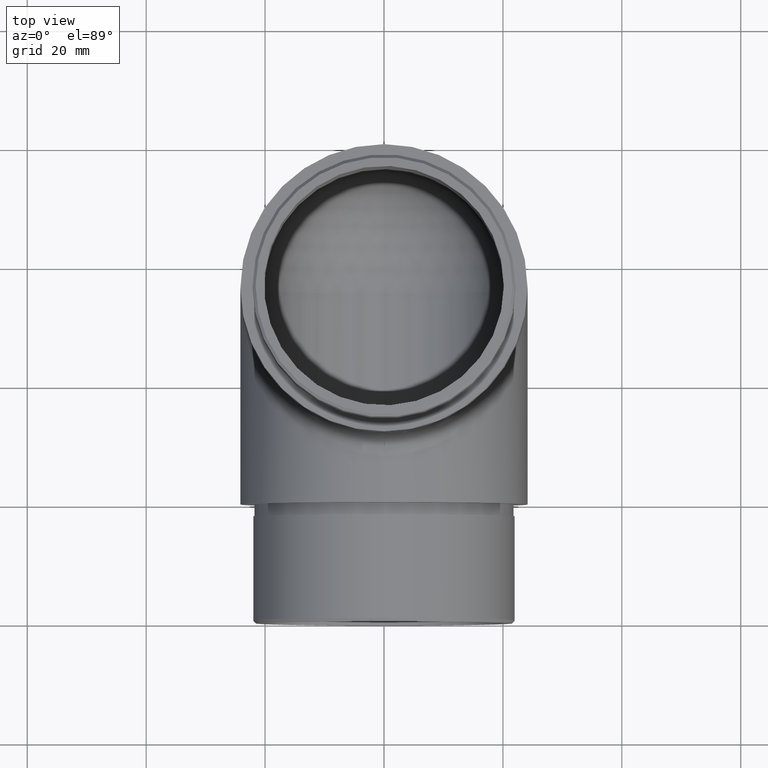
[diagram: clean part render]
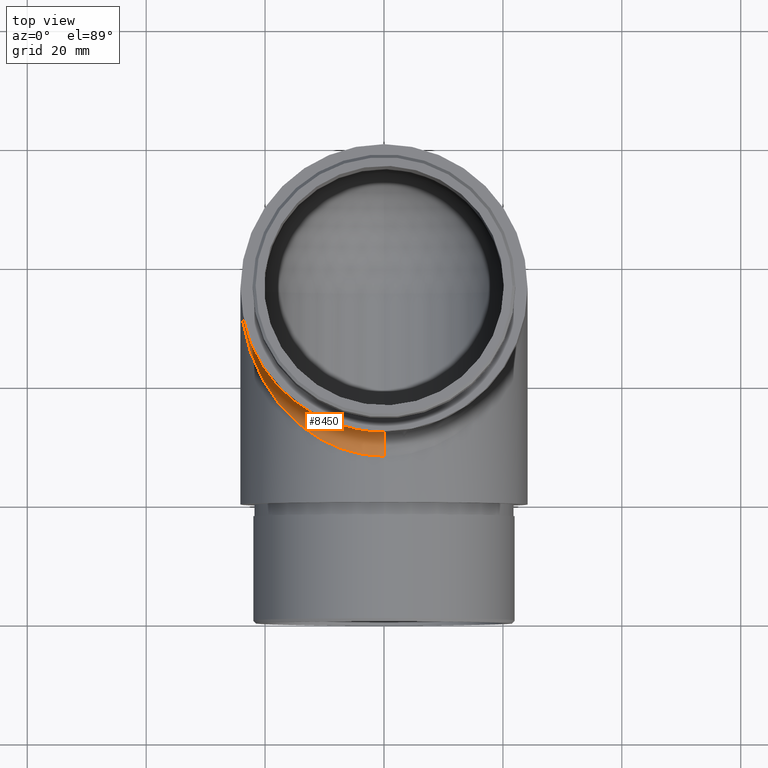
[diagram: same view with one face highlighted and labeled with its STEP entity id]
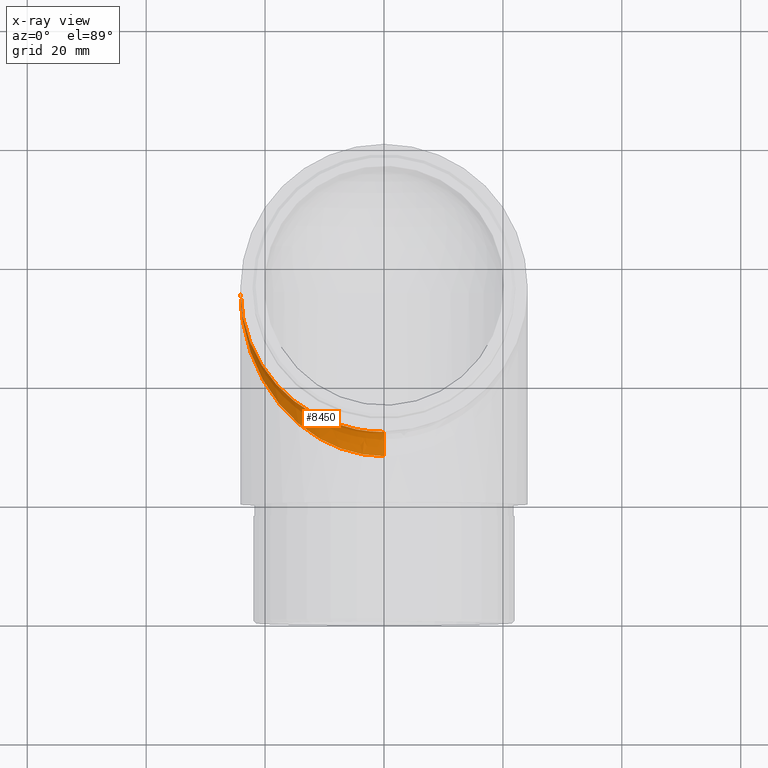
[diagram: x-ray of the same camera — body ghosted, the highlighted face saturated]
A machine part, top view. The second image highlights one B-rep face of the part: STEP entity #8450.
The next image is the same camera in x-ray: the body ghosted, the highlighted face saturated — about 0% of this face is hidden behind the body in this view.
In plain terms, the highlighted face is a freeform B-spline surface patch.
Its self-contained STEP definition (entity closure, byte-faithful):
#76 = CIRCLE ( 'NONE', #3490, 4.000000000000000000 ) ;
#164 =( BOUNDED_SURFACE ( )  B_SPLINE_SURFACE ( 3, 2, ( 
 ( #7618, #2650, #9637 ),
 ( #8598, #6676, #9596 ),
 ( #2735, #7659, #8687 ),
 ( #1739, #9512, #3755 ),
 ( #2782, #8647, #6719 ),
 ( #724, #10556, #7750 ),
 ( #4587, #11580, #679 ),
 ( #5706, #12533, #3716 ),
 ( #1700, #3604, #2690 ),
 ( #11657, #11493, #10679 ),
 ( #11538, #6629, #10634 ),
 ( #11623, #640, #4716 ),
 ( #12614, #8562, #2608 ),
 ( #3678, #771, #5584 ),
 ( #10590, #1785, #5621 ),
 ( #5751, #12657, #4674 ),
 ( #12489, #6765, #811 ),
 ( #7580, #1655, #2002 ) ),
 .UNSPECIFIED., .F., .F., .F. ) 
 B_SPLINE_SURFACE_WITH_KNOTS ( ( 4, 2, 2, 2, 2, 2, 2, 2, 4 ),
 ( 3, 3 ),
 ( 6.283185307179586232, 6.479534848028948524, 6.675884388878310816, 6.872233929727672219, 7.068583470577034511, 7.264933011426396803, 7.461282552275758206, 7.657632093125120498, 7.853981633974482790 ),
 ( 0.000000000000000000, 1.000000000000000000 ),
 .UNSPECIFIED. ) 
 GEOMETRIC_REPRESENTATION_ITEM ( )  RATIONAL_B_SPLINE_SURFACE ( (
 ( 1.000000000000000000, 0.7071067811865469066, 1.000000000000000000),
 ( 1.000000000000000000, 0.7070717283965342048, 1.000000000000000000),
 ( 1.000000000000000000, 0.7117460025036116411, 1.000000000000000000),
 ( 1.000000000000000000, 0.7291288940397037122, 1.000000000000000000),
 ( 1.000000000000000000, 0.7418334178507554055, 1.000000000000000000),
 ( 1.000000000000000000, 0.7723968218464482005, 1.000000000000000000),
 ( 1.000000000000000000, 0.7902180086230246037, 1.000000000000000000),
 ( 1.000000000000000000, 0.8275942696203171245, 1.000000000000000000),
 ( 1.000000000000000000, 0.8471316604170165965, 1.000000000000000000),
 ( 1.000000000000000000, 0.8849191471518590424, 1.000000000000000000),
 ( 1.000000000000000000, 0.9031650994024450485, 1.000000000000000000),
 ( 1.000000000000000000, 0.9360421842839501405, 1.000000000000000000),
 ( 1.000000000000000000, 0.9506740353910904107, 1.000000000000000000),
 ( 1.000000000000000000, 0.9747108043712219283, 1.000000000000000000),
 ( 1.000000000000000000, 0.9841171504837531447, 1.000000000000000000),
 ( 1.000000000000000000, 0.9967613244639872416, 1.000000000000000000),
 ( 1.000000000000000000, 1.000009746408267119, 1.000000000000000000),
 ( 1.000000000000000000, 1.000000000000000000, 1.000000000000000000) ) ) 
 REPRESENTATION_ITEM ( '' )  SURFACE ( )  );
#522 = VERTEX_POINT ( 'NONE', #12557 ) ;
#640 = CARTESIAN_POINT ( 'NONE',  ( -20.44781897945508931, 22.85703085390720446, 37.14296914609686695 ) ) ;
#679 = CARTESIAN_POINT ( 'NONE',  ( -12.10278878095977007, 14.89186688372398848, 48.57945951233947568 ) ) ;
#724 = CARTESIAN_POINT ( 'NONE',  ( -10.70210163351830701, 10.54785216368583711, 45.85681599456277269 ) ) ;
#771 = CARTESIAN_POINT ( 'NONE',  ( -22.70764488886259969, 27.43523153822344796, 32.56476846176366280 ) ) ;
#811 = CARTESIAN_POINT ( 'NONE',  ( -24.15000000000000213, 34.26936826613817288, 25.99243409146645689 ) ) ;
#1589 = CARTESIAN_POINT ( 'NONE',  ( -24.15000000000000213, 19.36011178080263306, 38.29674246868975018 ) ) ;
#1655 = CARTESIAN_POINT ( 'NONE',  ( -24.14999999999999858, 35.85000000000005116, 24.14999999999994884 ) ) ;
#1700 = CARTESIAN_POINT ( 'NONE',  ( -15.95896602668215181, 14.64216124822929643, 42.34429150462808167 ) ) ;
#1739 = CARTESIAN_POINT ( 'NONE',  ( -6.261674029180410272, 8.600331339419581056, 47.52760206582689761 ) ) ;
#1785 = CARTESIAN_POINT ( 'NONE',  ( -23.24912884867291041, 29.07416331028083434, 30.92583668971014177 ) ) ;
#1999 = ORIENTED_EDGE ( 'NONE', *, *, #3168, .F. ) ;
#2002 = CARTESIAN_POINT ( 'NONE',  ( -24.14999999999999858, 35.85000000000005116, 24.14999999999994529 ) ) ;
#2329 = CARTESIAN_POINT ( 'NONE',  ( 4.618746149288144013E-15, 7.700000000000005507, 52.29999999999999716 ) ) ;
#2372 = CARTESIAN_POINT ( 'NONE',  ( -24.14999999999999858, 35.85000000000000853, 24.14999999999999503 ) ) ;
#2608 = CARTESIAN_POINT ( 'NONE',  ( -21.70681599452112920, 25.14789836638117748, 36.62470645907037436 ) ) ;
#2650 = CARTESIAN_POINT ( 'NONE',  ( 3.469446951953614189E-15, 11.70000000000000639, 48.29999999999999005 ) ) ;
#2690 = CARTESIAN_POINT ( 'NONE',  ( -15.95896602668215536, 17.65570849537191478, 45.35783875176678492 ) ) ;
#2735 = CARTESIAN_POINT ( 'NONE',  ( -3.161188524198547789, 7.881457373878538952, 48.14432697764915048 ) ) ;
#2782 = CARTESIAN_POINT ( 'NONE',  ( -7.781508149715453904, 9.137730155928680986, 47.06656542573239932 ) ) ;
#3168 = EDGE_CURVE ( 'NONE', #522, #9118, #10424, .T. ) ;
#3490 = AXIS2_PLACEMENT_3D ( 'NONE', #2329, #11213, #11177 ) ;
#3604 = CARTESIAN_POINT ( 'NONE',  ( -14.88609126051991893, 16.70899965753996241, 43.29100034245604434 ) ) ;
#3678 = CARTESIAN_POINT ( 'NONE',  ( -22.91656542577706190, 26.77962921690706111, 31.93150814960763029 ) ) ;
#3716 = CARTESIAN_POINT ( 'NONE',  ( -14.73125347388700490, 16.64815084206307461, 46.53227966029381690 ) ) ;
#3755 = CARTESIAN_POINT ( 'NONE',  ( -6.261674029181192758, 12.47239793417326403, 51.39966866057716288 ) ) ;
#4336 = CARTESIAN_POINT ( 'NONE',  ( 3.469446951953614189E-15, 11.70000000000000284, 52.29999999999999716 ) ) ;
#4342 = CARTESIAN_POINT ( 'NONE',  ( -14.14674246868975160, 11.70000000000000284, 52.29999999999999716 ) ) ;
#4367 = CARTESIAN_POINT ( 'NONE',  ( -24.14999999999999858, 35.85000000000000853, 24.14999999999999503 ) ) ;
#4389 = CARTESIAN_POINT ( 'NONE',  ( 3.469446951953614189E-15, 7.699999999999998401, 48.29999999999999716 ) ) ;
#4587 = CARTESIAN_POINT ( 'NONE',  ( -12.10278878095977007, 11.42054048765320928, 45.10813311627600797 ) ) ;
#4674 = CARTESIAN_POINT ( 'NONE',  ( -23.99432697767941747, 32.68881147595361369, 27.83478082616916183 ) ) ;
#4716 = CARTESIAN_POINT ( 'NONE',  ( -20.95813311630674747, 23.74721121908622123, 38.25739147753871094 ) ) ;
#5118 = CARTESIAN_POINT ( 'NONE',  ( 3.469446951953614189E-15, 11.70000000000000284, 52.29999999999999716 ) ) ;
#5584 = CARTESIAN_POINT ( 'NONE',  ( -22.91656542577398525, 28.06849185038494454, 33.22037078308424185 ) ) ;
#5621 = CARTESIAN_POINT ( 'NONE',  ( -23.37760206579660505, 29.58832597066734493, 31.44880430333892107 ) ) ;
#5706 = CARTESIAN_POINT ( 'NONE',  ( -14.73125347388700490, 13.46772033971349458, 43.35184915793692539 ) ) ;
#5751 = CARTESIAN_POINT ( 'NONE',  ( -23.99432697767941391, 32.16521917383084173, 27.31118852404638631 ) ) ;
#6629 = CARTESIAN_POINT ( 'NONE',  ( -18.46277926140382775, 20.14369427253318179, 39.85630572746259048 ) ) ;
#6676 = CARTESIAN_POINT ( 'NONE',  ( -1.317942443150481591, 11.69999999998722906, 48.29999999999360227 ) ) ;
#6719 = CARTESIAN_POINT ( 'NONE',  ( -7.781508149715455680, 12.93343457426759535, 50.86226984406789597 ) ) ;
#6730 = VERTEX_POINT ( 'NONE', #4336 ) ;
#6765 = CARTESIAN_POINT ( 'NONE',  ( -24.14999999999095692, 34.13848327318645204, 25.86151672686779079 ) ) ;
#7580 = CARTESIAN_POINT ( 'NONE',  ( -24.14999999999999858, 35.85000000000005826, 24.14999999999995239 ) ) ;
#7618 = CARTESIAN_POINT ( 'NONE',  ( 3.469446951953614189E-15, 7.699999999999998401, 48.29999999999999716 ) ) ;
#7659 = CARTESIAN_POINT ( 'NONE',  ( -2.623246104859317196, 11.79847233939080020, 48.20152766060096639 ) ) ;
#7750 = CARTESIAN_POINT ( 'NONE',  ( -10.70210163351830879, 14.14318400543722021, 49.45214783631757882 ) ) ;
#8154 = FACE_OUTER_BOUND ( 'NONE', #11963, .T. ) ;
#8450 = ADVANCED_FACE ( 'NONE', ( #8154 ), #164, .F. ) ;
#8562 = CARTESIAN_POINT ( 'NONE',  ( -21.31438768496386515, 24.33263276805284647, 35.66736723196037673 ) ) ;
#8598 = CARTESIAN_POINT ( 'NONE',  ( -1.580631733763065094, 7.700000000003194955, 48.29999999999999716 ) ) ;
#8647 = CARTESIAN_POINT ( 'NONE',  ( -6.685530797801338743, 12.56865462050189208, 47.43134537949810436 ) ) ;
#8687 = CARTESIAN_POINT ( 'NONE',  ( -3.161188524197764860, 11.85567302235070031, 52.11854262612472155 ) ) ;
#8696 = EDGE_CURVE ( 'NONE', #522, #6730, #76, .T. ) ;
#8772 = EDGE_CURVE ( 'NONE', #9118, #6730, #11280, .T. ) ;
#9118 = VERTEX_POINT ( 'NONE', #4367 ) ;
#9274 = CARTESIAN_POINT ( 'NONE',  ( -24.15000000000000213, 21.70325753131025692, 40.63988821919736694 ) ) ;
#9512 = CARTESIAN_POINT ( 'NONE',  ( -5.320797334010766377, 12.23663053424899338, 47.76336946575906950 ) ) ;
#9596 = CARTESIAN_POINT ( 'NONE',  ( -1.580631733763650182, 11.69999999999999929, 52.29999999998721449 ) ) ;
#9637 = CARTESIAN_POINT ( 'NONE',  ( 3.469446951953614189E-15, 11.69999999999999929, 52.29999999999999716 ) ) ;
#10284 = ORIENTED_EDGE ( 'NONE', *, *, #8772, .F. ) ;
#10424 =( BOUNDED_CURVE ( )  B_SPLINE_CURVE ( 3, ( #4389, #11305, #1589, #12376 ),
 .UNSPECIFIED., .F., .F. ) 
 B_SPLINE_CURVE_WITH_KNOTS ( ( 4, 4 ),
 ( 0.000000000000000000, 1.570796326794896780 ),
 .UNSPECIFIED. ) 
 CURVE ( )  GEOMETRIC_REPRESENTATION_ITEM ( )  RATIONAL_B_SPLINE_CURVE ( ( 1.000000000000000000, 0.8047378541243649375, 0.8047378541243649375, 1.000000000000000000 ) ) 
 REPRESENTATION_ITEM ( '' )  );
#10556 = CARTESIAN_POINT ( 'NONE',  ( -9.462697992456712726, 13.54414663757125581, 46.45585336242872643 ) ) ;
#10590 = CARTESIAN_POINT ( 'NONE',  ( -23.37760206579660149, 28.55119569666108603, 30.41167402933265862 ) ) ;
#10634 = CARTESIAN_POINT ( 'NONE',  ( -19.20184915790616387, 21.11874652606696046, 41.32121264146493189 ) ) ;
#10679 = CARTESIAN_POINT ( 'NONE',  ( -18.19429150462800138, 19.89103397331774659, 42.75227302903593340 ) ) ;
#10733 = ORIENTED_EDGE ( 'NONE', *, *, #8696, .T. ) ;
#11177 = DIRECTION ( 'NONE',  ( -2.873247993336325546E-16, 1.000000000000000000, 0.000000000000000000 ) ) ;
#11213 = DIRECTION ( 'NONE',  ( 1.000000000000000000, 2.873247993336325053E-16, -2.873247993336322095E-16 ) ) ;
#11280 =( BOUNDED_CURVE ( )  B_SPLINE_CURVE ( 3, ( #2372, #9274, #4342, #5118 ),
 .UNSPECIFIED., .F., .T. ) 
 B_SPLINE_CURVE_WITH_KNOTS ( ( 4, 4 ),
 ( 4.712388980384689674, 6.283185307179586232 ),
 .UNSPECIFIED. ) 
 CURVE ( )  GEOMETRIC_REPRESENTATION_ITEM ( )  RATIONAL_B_SPLINE_CURVE ( ( 1.000000000000000000, 0.8047378541243649375, 0.8047378541243649375, 1.000000000000000000 ) ) 
 REPRESENTATION_ITEM ( '' )  );
#11305 = CARTESIAN_POINT ( 'NONE',  ( -14.14674246868975160, 7.699999999999997513, 48.30000000000000426 ) ) ;
#11493 = CARTESIAN_POINT ( 'NONE',  ( -17.32826815304107271, 18.90423218372498226, 41.09576781627885822 ) ) ;
#11538 = CARTESIAN_POINT ( 'NONE',  ( -19.20184915790616387, 18.67878735853922478, 38.88125347393303599 ) ) ;
#11580 = CARTESIAN_POINT ( 'NONE',  ( -10.85479118814524391, 14.17175280583068364, 45.82824719416370129 ) ) ;
#11623 = CARTESIAN_POINT ( 'NONE',  ( -20.95813311630674747, 21.74260852245713238, 36.25278878091378232 ) ) ;
#11657 = CARTESIAN_POINT ( 'NONE',  ( -18.19429150462799782, 17.24772697096797103, 40.10896602668224631 ) ) ;
#11963 = EDGE_LOOP ( 'NONE', ( #10733, #10284, #1999 ) ) ;
#12376 = CARTESIAN_POINT ( 'NONE',  ( -24.14999999999999858, 35.85000000000000853, 24.14999999999999503 ) ) ;
#12489 = CARTESIAN_POINT ( 'NONE',  ( -24.15000000000000213, 34.00756590855205275, 25.73063173388342051 ) ) ;
#12533 = CARTESIAN_POINT ( 'NONE',  ( -13.56856898337889561, 15.76263684809856080, 44.23736315190679846 ) ) ;
#12557 = CARTESIAN_POINT ( 'NONE',  ( 3.469446951953614189E-15, 7.699999999999998401, 48.29999999999999716 ) ) ;
#12614 = CARTESIAN_POINT ( 'NONE',  ( -21.70681599451805610, 23.37529354093832623, 34.85210163362625480 ) ) ;
#12657 = CARTESIAN_POINT ( 'NONE',  ( -23.96601196216906260, 32.41641731157174888, 27.58358268843714001 ) ) ;